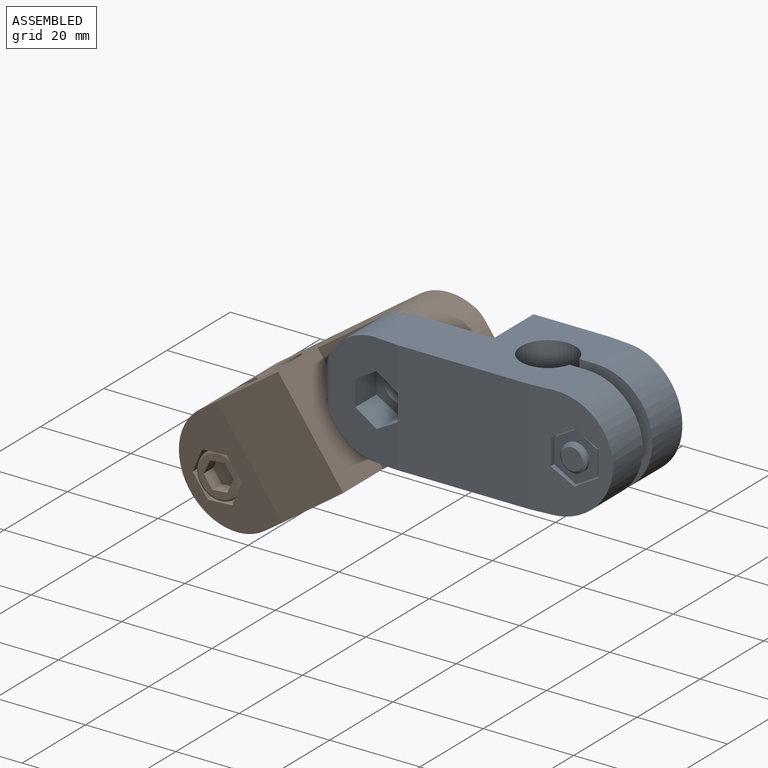
[diagram: assembled view]
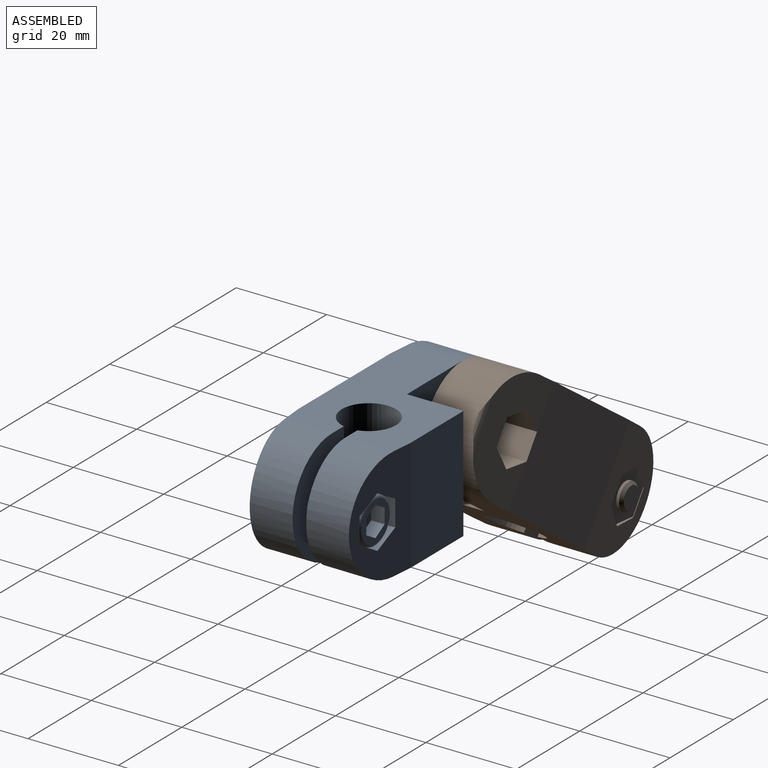
[diagram: assembled view, second angle]
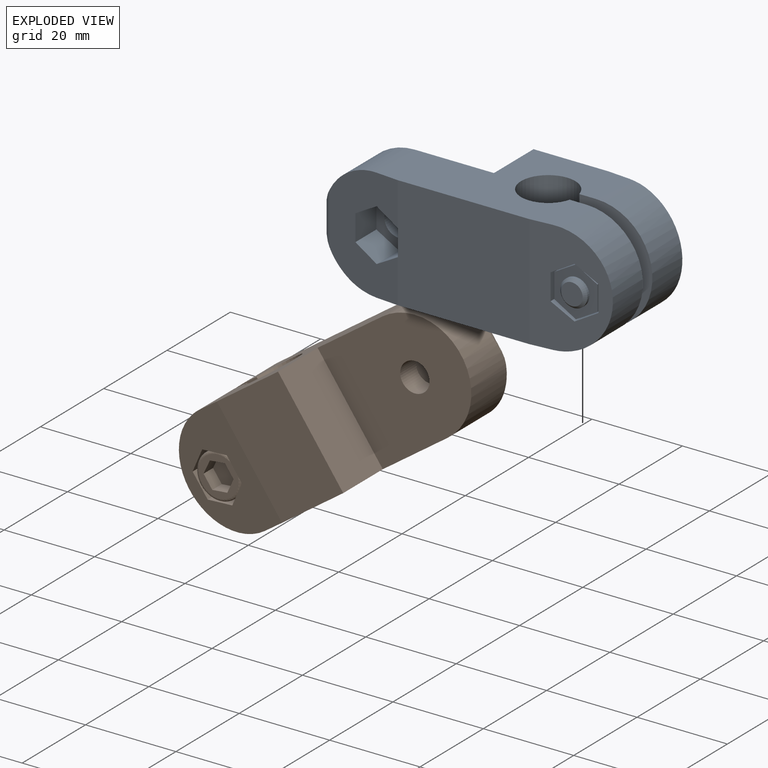
[diagram: exploded view]
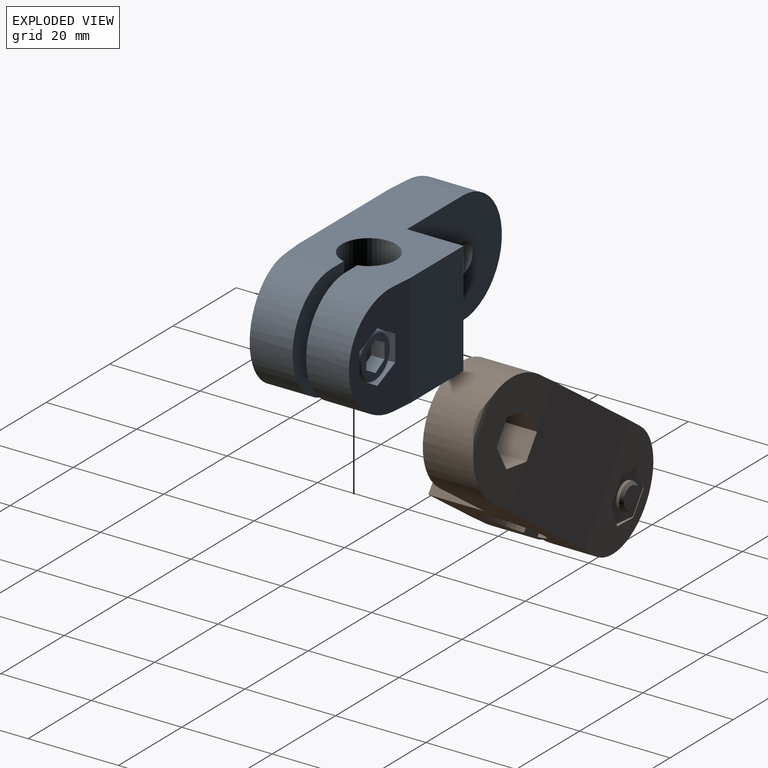
[diagram: exploded view, second angle]
ASSEMBLY  parts=2 mates=2
PART A: 68 faces, bbox 66.2x27.2x27.2 mm
  f0: cylinder r=6mm len=25mm, axis (0,0,1), area 866.7mm2, adj f1,f18,f19,f20
  f1: plane 39x25mm, normal (0,0,-1), area 629.3mm2, adj f0,f2,f3,f9,f13,f14,f15,f16
  f2: cylinder r=12.5mm len=25mm, axis (0,-1,0), area 440.3mm2, adj f1,f3,f13,f19,f67
  f3: plane 25.29x16.34mm, normal (-0.09,-1,0), area 273mm2, adj f1,f2,f4,f5,f6,f7,f8,f9
  f4: plane 7.5x5mm, normal (-0.5,0,0.87), area 42.1mm2, adj f3,f5,f9,f10,f11
  f5: plane 7.07x5mm, normal (0.5,0,0.87), area 39.6mm2, adj f3,f4,f6,f11
  f6: plane 6.63x5.77mm, normal (1,0,0), area 38.3mm2, adj f3,f5,f7,f11
  f7: plane 7.07x5mm, normal (0.5,0,-0.87), area 39.6mm2, adj f3,f6,f8,f11
  f8: plane 7.5x5mm, normal (-0.5,0,-0.87), area 42.1mm2, adj f3,f7,f9,f10,f11
  f9: plane 29.15x25mm, normal (0,-1,0), area 728.4mm2, adj f1,f3,f4,f8,f10,f19,f22
  f10: plane 7.5x5.77mm, normal (-1,0,0), area 43.3mm2, adj f4,f8,f9,f11
  f11: plane 11.55x10mm, normal (0,-1,0), area 53.4mm2, adj f4,f5,f6,f7,f8,f10,f12
  f12: cylinder r=3.25mm len=6.5mm, axis (0,-1,0), area 102.1mm2, adj f11,f13
  f13: plane 30x25mm, normal (0,1,0), area 649.8mm2, adj f1,f2,f12,f14,f19
  f14: plane 25x12.5mm, normal (-1,0,0), area 312.5mm2, adj f1,f13,f15,f19
  f15: plane 25x16.58mm, normal (0,1,0), area 414.4mm2, adj f1,f14,f16,f19
  f16: plane 27.19x19.61mm, normal (0.09,1,0), area 282.9mm2, adj f1,f15,f17,f19,f45,f46,f47,f48
  f17: cylinder r=12.5mm len=25mm, axis (0,-1,0), area 415.1mm2, adj f1,f16,f18,f19
  f18: plane 25x16.19mm, normal (0,-1,0), area 299.2mm2, adj f0,f1,f17,f19,f44
  f19: plane 39x25mm, normal (0,0,1), area 629.3mm2, adj f0,f2,f3,f9,f13,f14,f15,f16
  f20: plane 25x16.19mm, normal (0,1,0), area 299.2mm2, adj f0,f1,f19,f21,f40
  f21: cylinder r=12.5mm len=25mm, axis (0,-1,0), area 415.1mm2, adj f1,f19,f20,f22
  f22: plane 27.19x19.61mm, normal (0.09,-1,0), area 282.9mm2, adj f1,f9,f19,f21,f23,f24,f25,f26
  f23: plane 6.86x5.77mm, normal (1,0,0), area 39.6mm2, adj f22,f24,f28,f29
  f24: plane 6.86x5mm, normal (0.5,0,-0.87), area 38.4mm2, adj f22,f23,f25,f29
  f25: plane 6.43x5mm, normal (-0.5,0,-0.87), area 35.8mm2, adj f22,f24,f26,f29
  f26: plane 5.99x5.77mm, normal (-1,0,0), area 34.6mm2, adj f22,f25,f27,f29
  f27: plane 6.43x5mm, normal (-0.5,0,0.87), area 35.8mm2, adj f22,f26,f28,f29
  f28: plane 6.86x5mm, normal (0.5,0,0.87), area 38.4mm2, adj f22,f23,f27,f29
  f29: plane 11.55x10mm, normal (0,-1,0), area 8.4mm2, adj f23,f24,f25,f26,f27,f28,f30,f32
  f30: plane 6x4.75mm, normal (-0.5,0,0.87), area 32.9mm2, adj f29,f31,f32,f36
  f31: plane 10.97x9.5mm, normal (0,-1,0), area 49.9mm2, adj f30,f32,f33,f34,f35,f36,f37
  f32: plane 6x4.75mm, normal (0.5,0,0.87), area 32.9mm2, adj f29,f30,f31,f33
  f33: plane 6x5.49mm, normal (1,0,0), area 32.9mm2, adj f29,f31,f32,f34
  f34: plane 6x4.75mm, normal (0.5,0,-0.87), area 32.9mm2, adj f29,f31,f33,f35
  f35: plane 6x4.75mm, normal (-0.5,0,-0.87), area 32.9mm2, adj f29,f31,f34,f36
  f36: plane 6x5.49mm, normal (-1,0,0), area 32.9mm2, adj f29,f30,f31,f35
  f37: cylinder r=3mm len=6mm, axis (0,-1,0), area 12mm2, adj f31,f38
  f38: cone r=2.69mm half-angle=45deg, axis (0,1,0), area 14.7mm2, adj f37,f39
  f39: plane 4.77x4.77mm, normal (0,-1,0), area 17.9mm2, adj f38
  f40: cylinder r=3.5mm len=7mm, axis (0,-1,0), area 82.5mm2, adj f20,f41
  f41: plane 7x7mm, normal (0,1,0), area 10.2mm2, adj f40,f42
  f42: cylinder r=3mm len=10.5mm, axis (0,-1,0), area 197.9mm2, adj f41,f43
  f43: plane 7x7mm, normal (0,-1,0), area 10.2mm2, adj f42,f44
  f44: cylinder r=3.5mm len=7mm, axis (0,-1,0), area 82.5mm2, adj f18,f43
  f45: plane 6.86x5.77mm, normal (1,0,0), area 39.6mm2, adj f16,f46,f50,f53,f56
  f46: plane 6.86x5mm, normal (0.5,0,0.87), area 38.4mm2, adj f16,f45,f47,f51,f53
  f47: plane 6.43x5mm, normal (-0.5,0,0.87), area 35.8mm2, adj f16,f46,f48,f51,f52
  f48: plane 5.99x5.77mm, normal (-1,0,0), area 34.6mm2, adj f16,f47,f49,f52,f54
  f49: plane 6.43x5mm, normal (-0.5,0,-0.87), area 35.8mm2, adj f16,f48,f50,f54,f55
  f50: plane 6.86x5mm, normal (0.5,0,-0.87), area 38.4mm2, adj f16,f45,f49,f55,f56
  f51: plane 5x1.45mm, normal (0,1,0), area 1.3mm2, adj f46,f47,f57
  f52: plane 4.33x2.5mm, normal (0,1,0), area 1.3mm2, adj f47,f48,f57
  f53: plane 4.33x2.5mm, normal (0,1,0), area 1.3mm2, adj f45,f46,f57
  f54: plane 4.33x2.5mm, normal (0,1,0), area 1.3mm2, adj f48,f49,f57
  f55: plane 5x1.45mm, normal (0,1,0), area 1.3mm2, adj f49,f50,f57
  f56: plane 4.33x2.5mm, normal (0,1,0), area 1.3mm2, adj f45,f50,f57
  f57: cylinder r=5mm len=10mm, axis (0,-1,0), area 169.6mm2, adj f51,f52,f53,f54,f55,f56,f58
  f58: torus R=4.4mm, axis (0,1,0), area 28.3mm2, adj f57,f59
  f59: plane 8.8x8.8mm, normal (0,1,0), area 31.9mm2, adj f58,f60,f62,f63,f64,f65,f66
  f60: plane 3x2.89mm, normal (0.5,0,-0.87), area 10mm2, adj f59,f61,f62,f66
  f61: plane 6.67x5.78mm, normal (0,1,0), area 28.9mm2, adj f60,f62,f63,f64,f65,f66
  f62: plane 3.33x3mm, normal (1,0,0), area 10mm2, adj f59,f60,f61,f63
  f63: plane 3x2.89mm, normal (0.5,0,0.87), area 10mm2, adj f59,f61,f62,f64
  f64: plane 3x2.89mm, normal (-0.5,0,0.87), area 10mm2, adj f59,f61,f63,f65
  f65: plane 3.33x3mm, normal (-1,0,0), area 10mm2, adj f59,f61,f64,f66
  f66: plane 3x2.89mm, normal (-0.5,0,-0.87), area 10mm2, adj f59,f60,f61,f65
  f67: cylinder r=1.5mm len=11.38mm, axis (0,0,1), area 12.7mm2, adj f2,f3
PART B: same geometry as A
PLACE A t=(-4.04,-0.52,0.24)mm fixed
PLACE B rot(axis=(0.3,0,-0.95),180deg) t=(18.67,24.48,7.44)mm
MATE cylindrical B.f2 <-> A.f2  axis (0,1,0) through (8.46,16.98,0.24)mm
MATE planar B.f13 <-> A.f13  axis (0,-1,0) through (15.67,11.98,-9.98)mm
